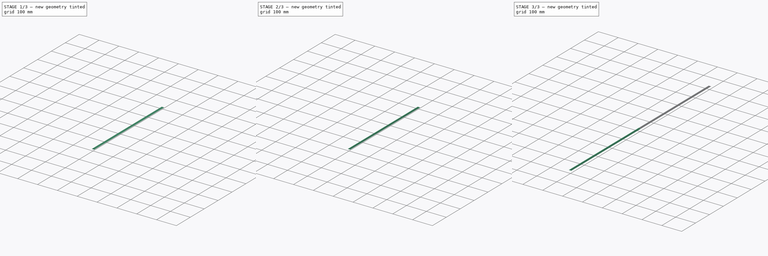
[diagram: build sequence overview — one tinted view per stage of 3, left to right]
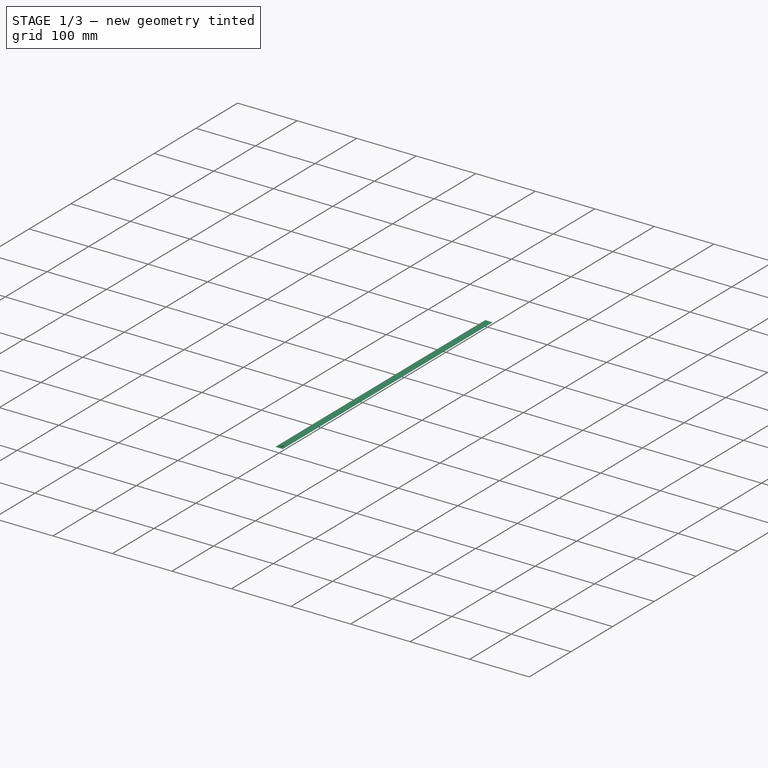
[diagram: stage 1 of 3 — iso view after this stage's code; geometry added in this stage tinted green]
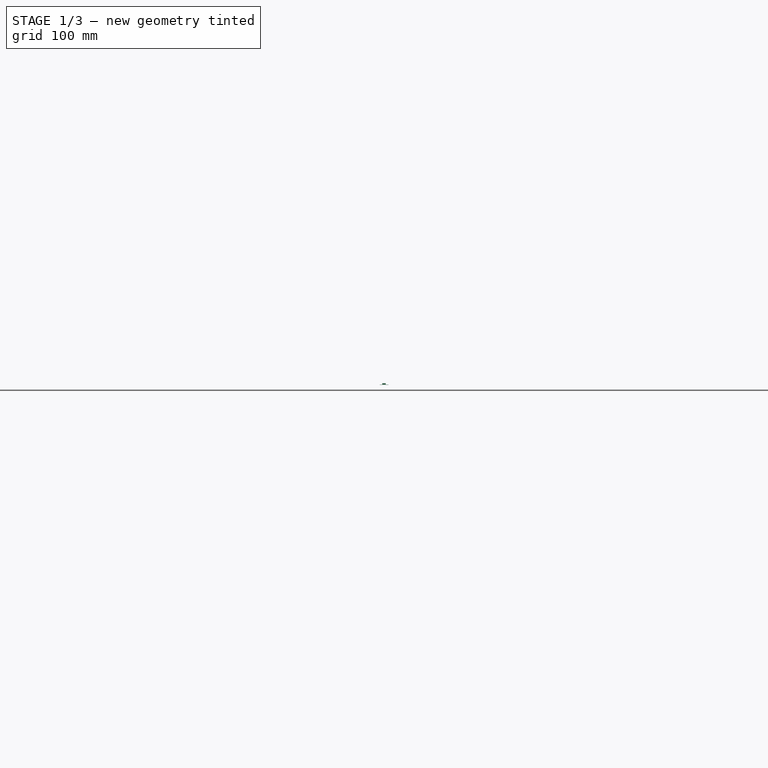
[diagram: stage 1 of 3 — front view after this stage's code; geometry added in this stage tinted green]
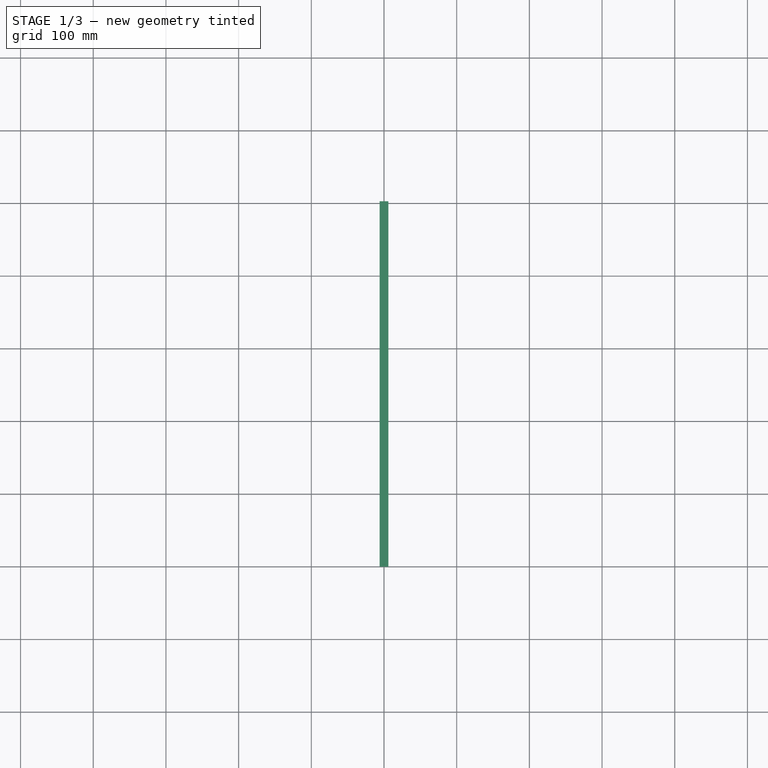
[diagram: stage 1 of 3 — top view after this stage's code; geometry added in this stage tinted green]
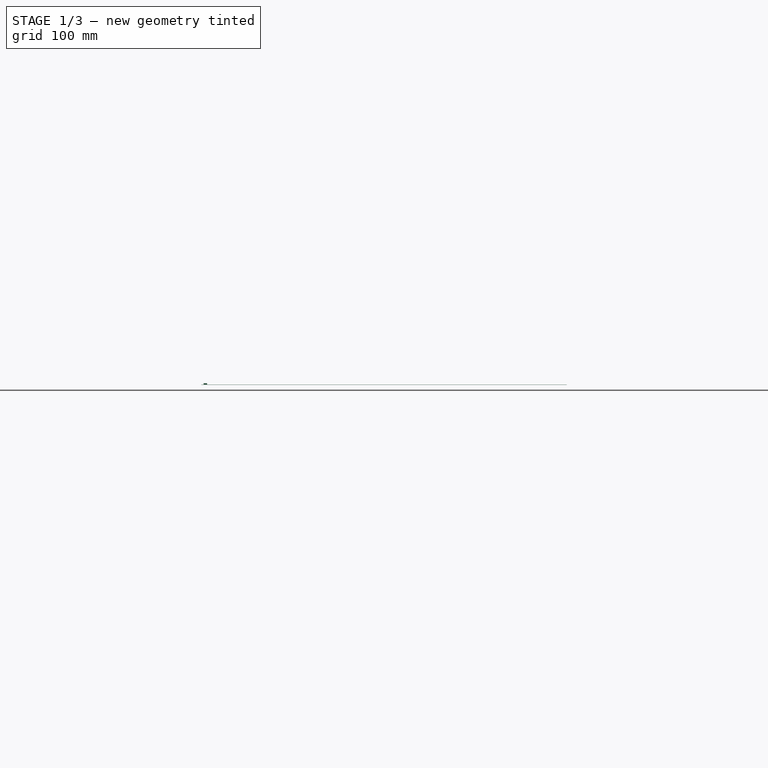
[diagram: stage 1 of 3 — right view after this stage's code; geometry added in this stage tinted green]
FCSTD DOCUMENT  (FreeCAD 0.20R29410 (Git))
Label: SK6812
License: All rights reserved
LicenseURL: http://en.wikipedia.org/wiki/All_rights_reserved
objects: Sketcher::SketchObject×4, PartDesign::Pad×3, PartDesign::LinearPattern×1, PartDesign::Body×1, Part::Mirroring×1, Part::MultiFuse×1
note: 14 computed .brp shape members not serialized (recipe doc carries the construction recipe); baked Part::Feature solids carry a one-line shape summary decoded from their .brp

FEATURE [Sketcher::SketchObject] Sketch  label="skBand"
  FullyConstrained = true
  MapMode = 5
  Placement = pos=(0,0,0) rot=(1,0,0;1.5708rad)
  Support = -> [XZ_Plane]
  sketch-geometry (4):
    g0: LineSegment StartX=-6 StartY=0 StartZ=0 EndX=6 EndY=0 EndZ=0
    g1: LineSegment StartX=6 StartY=0 StartZ=0 EndX=6 EndY=0.3 EndZ=0
    g2: LineSegment StartX=6 StartY=0.3 StartZ=0 EndX=-6 EndY=0.3 EndZ=0
    g3: LineSegment StartX=-6 StartY=0.3 StartZ=0 EndX=-6 EndY=0 EndZ=0
  constraints (11):
    c: Coincident(g0,g1)
    c: Coincident(g1,g2)
    c: Coincident(g2,g3)
    c: Coincident(g3,g0)
    c: Horizontal(g0)
    c: Vertical(g1)
    c: Vertical(g3)
    c: PointOnObject(g0,g-1)
    c: Symmetric(g1,g2,g-2)
    c: Distance(g2) = 12
    c: Distance(g1) = 0.3
FEATURE [PartDesign::Pad] Pad  label="pdBand"
  Direction = (0,-1,2e-16)
  Length = 503
  Length2 = 10
  Placement = pos=(0,0,0) rot=(1,0,0;1.5708rad)
  Profile = -> Sketch
  ReferenceAxis = -> Sketch [N_Axis]
  Reversed = true
  Type = 0
FEATURE [Sketcher::SketchObject] Sketch001  label="skLED"
  AttachmentOffset = pos=(0,0,0.3) rot=(0,0,1;0rad)
  FullyConstrained = true
  MapMode = 5
  Placement = pos=(0,0,0.3) rot=(0,0,1;0rad)
  Support = -> [XY_Plane]
  sketch-geometry (4):
    g0: LineSegment StartX=-2.4 StartY=8.2 StartZ=0 EndX=2.4 EndY=8.2 EndZ=0
    g1: LineSegment StartX=2.4 StartY=8.2 StartZ=0 EndX=2.4 EndY=3.4 EndZ=0
    g2: LineSegment StartX=2.4 StartY=3.4 StartZ=0 EndX=-2.4 EndY=3.4 EndZ=0
    g3: LineSegment StartX=-2.4 StartY=3.4 StartZ=0 EndX=-2.4 EndY=8.2 EndZ=0
  constraints (11):
    c: Coincident(g0,g1)
    c: Coincident(g1,g2)
    c: Coincident(g2,g3)
    c: Coincident(g3,g0)
    c: Horizontal(g0)
    c: Vertical(g1)
    c: Vertical(g3)
    c: Symmetric(g1,g2,g-2)
    c: Equal(g1,g2)
    c: Distance(g1) = 4.8
    c: DistanceY(g-1,g1) = 3.4
FEATURE [PartDesign::Pad] Pad001  label="pdLED"
  BaseFeature = -> Pad
  Direction = (0,0,1)
  Length = 1.6
  Length2 = 10
  Placement = pos=(0,0,0) rot=(1,0,0;1.5708rad)
  Profile = -> Sketch001
  ReferenceAxis = -> Sketch001 [N_Axis]
  Type = 0
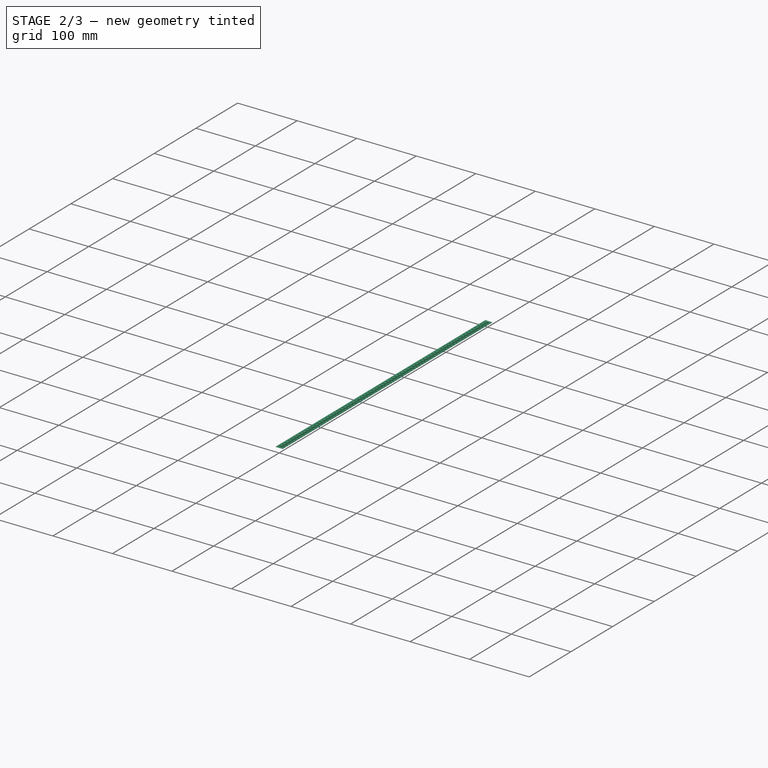
[diagram: stage 2 of 3 — iso view after this stage's code; geometry added in this stage tinted green]
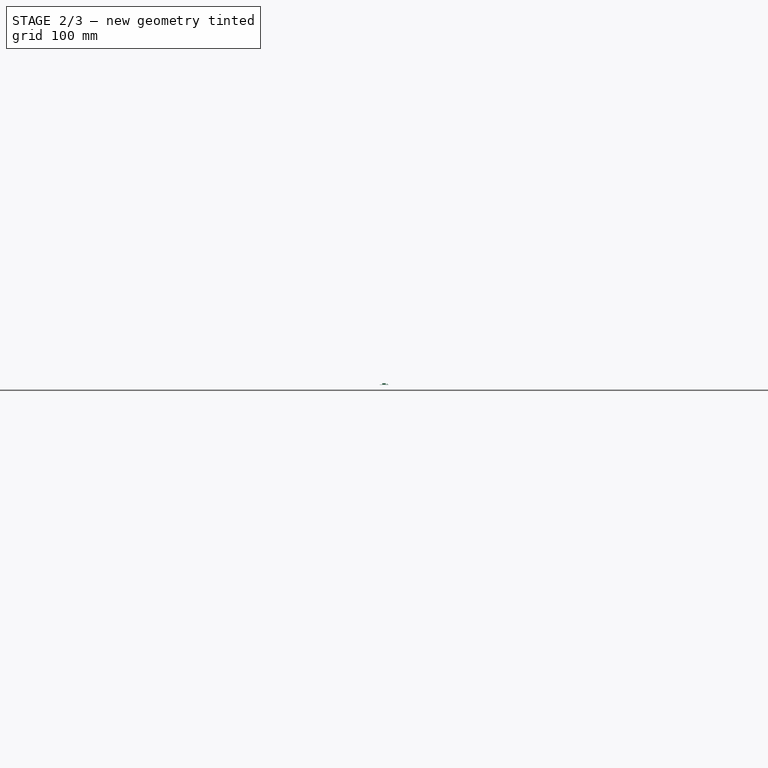
[diagram: stage 2 of 3 — front view after this stage's code; geometry added in this stage tinted green]
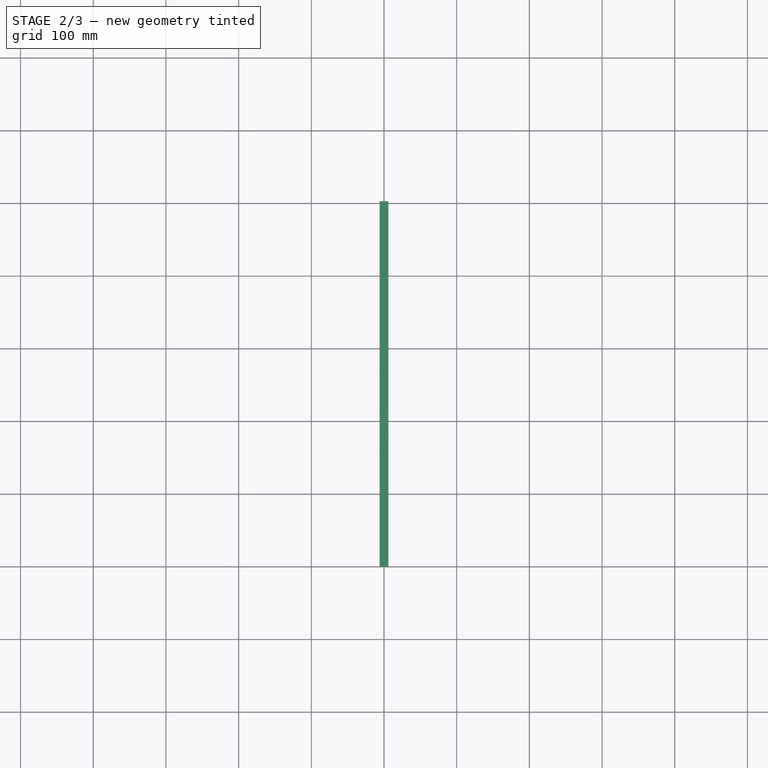
[diagram: stage 2 of 3 — top view after this stage's code; geometry added in this stage tinted green]
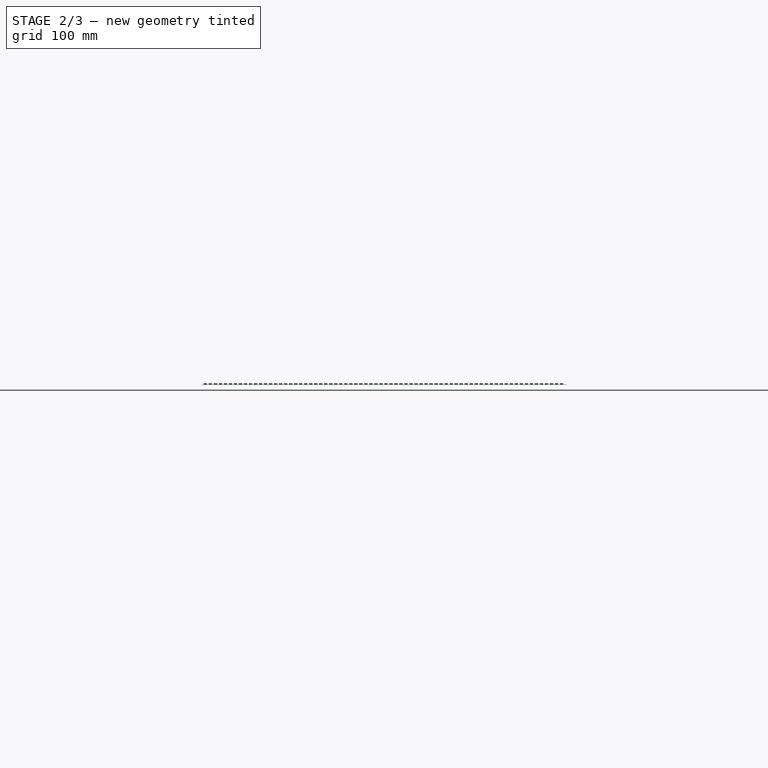
[diagram: stage 2 of 3 — right view after this stage's code; geometry added in this stage tinted green]
FEATURE [Sketcher::SketchObject] Sketch002  label="skResistor"
  AttachmentOffset = pos=(0,0,0.3) rot=(0,0,1;0rad)
  FullyConstrained = false
  MapMode = 5
  Placement = pos=(0,0,0.3) rot=(0,0,1;0rad)
  Support = -> [XY_Plane]
  sketch-geometry (4):
    g0: LineSegment StartX=3.96273 StartY=6.92093 StartZ=0 EndX=4.76273 EndY=6.92093 EndZ=0
    g1: LineSegment StartX=4.76273 StartY=6.92093 StartZ=0 EndX=4.76273 EndY=4.92093 EndZ=0
    g2: LineSegment StartX=4.76273 StartY=4.92093 StartZ=0 EndX=3.96273 EndY=4.92093 EndZ=0
    g3: LineSegment StartX=3.96273 StartY=4.92093 StartZ=0 EndX=3.96273 EndY=6.92093 EndZ=0
  constraints (10):
    c: Coincident(g0,g1)
    c: Coincident(g1,g2)
    c: Coincident(g2,g3)
    c: Coincident(g3,g0)
    c: Horizontal(g0)
    c: Horizontal(g2)
    c: Vertical(g1)
    c: Vertical(g3)
    c: Distance(g0) = 0.8
    c: Distance(g1) = 2
FEATURE [PartDesign::Pad] Pad002  label="pdResistor"
  BaseFeature = -> Pad001
  Direction = (0,0,1)
  Length = 1
  Length2 = 10
  Placement = pos=(0,0,0) rot=(1,0,0;1.5708rad)
  Profile = -> Sketch002
  ReferenceAxis = -> Sketch002 [N_Axis]
  Type = 0
FEATURE [PartDesign::LinearPattern] LinearPattern  label="lpLED+Resistor"
  BaseFeature = -> Pad002
  Direction = -> Y_Axis
  Length = 490
  Occurrences = 72
  Originals = -> [Pad001,Pad002]
  Placement = pos=(0,0,0) rot=(1,0,0;1.5708rad)
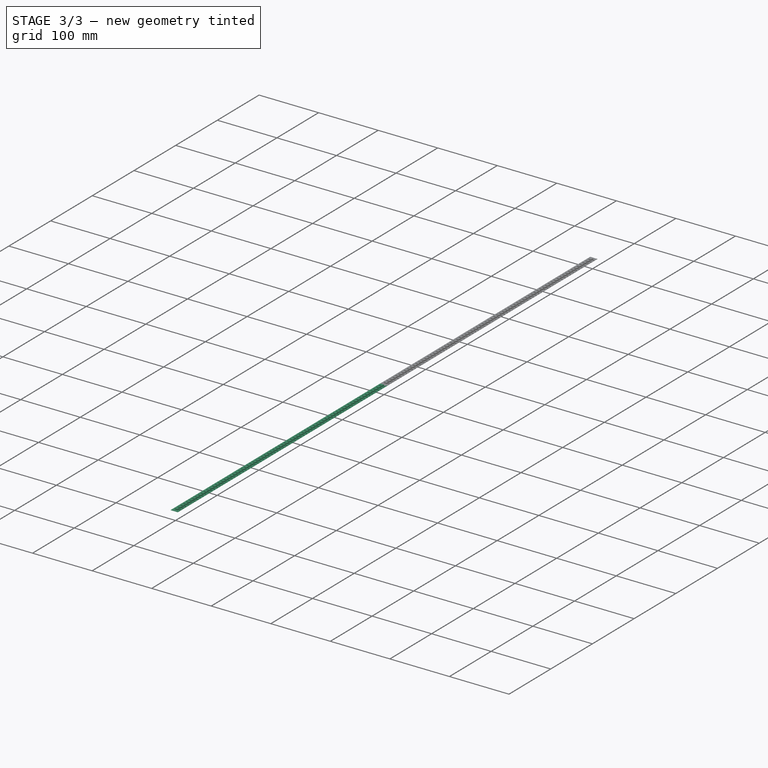
[diagram: stage 3 of 3 — iso view after this stage's code; geometry added in this stage tinted green]
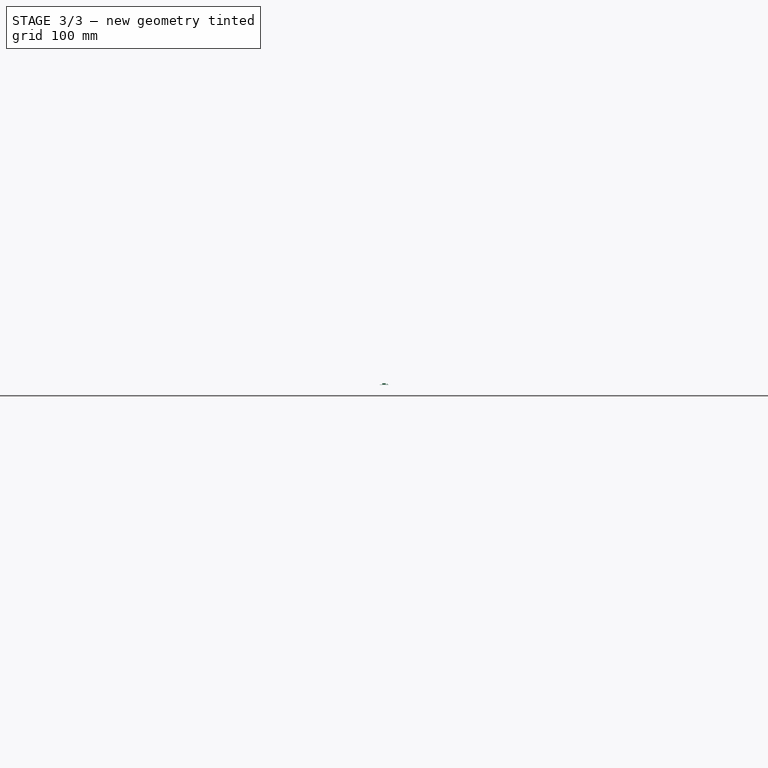
[diagram: stage 3 of 3 — front view after this stage's code; geometry added in this stage tinted green]
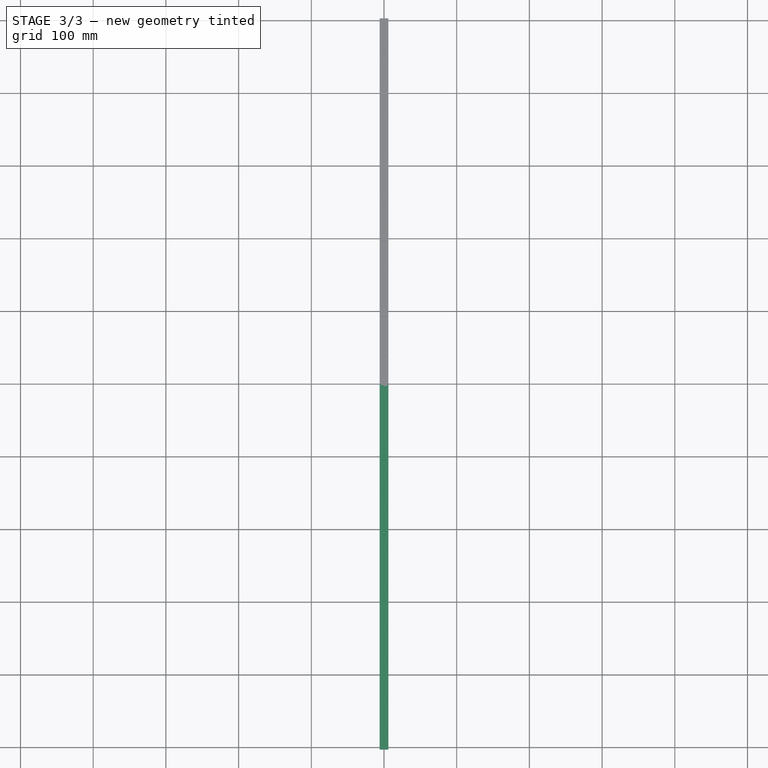
[diagram: stage 3 of 3 — top view after this stage's code; geometry added in this stage tinted green]
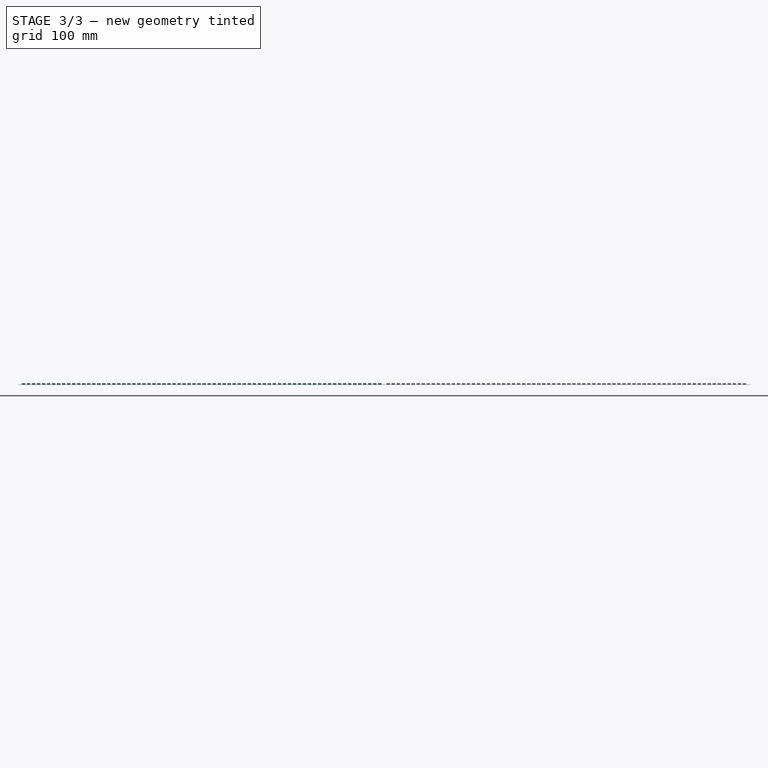
[diagram: stage 3 of 3 — right view after this stage's code; geometry added in this stage tinted green]
FEATURE [Sketcher::SketchObject] Sketch003  label="skBase"
  FullyConstrained = false
  MapMode = 5
  Support = -> [XY_Plane]
  sketch-geometry (4):
    g0: LineSegment StartX=-44.757 StartY=503 StartZ=0 EndX=63.5086 EndY=503 EndZ=0
    g1: LineSegment StartX=63.5086 StartY=503 StartZ=0 EndX=63.5086 EndY=-503 EndZ=0
    g2: LineSegment StartX=63.5086 StartY=-503 StartZ=0 EndX=-44.757 EndY=-503 EndZ=0
    g3: LineSegment StartX=-44.757 StartY=-503 StartZ=0 EndX=-44.757 EndY=503 EndZ=0
  constraints (9):
    c: Coincident(g0,g1)
    c: Coincident(g1,g2)
    c: Coincident(g2,g3)
    c: Coincident(g3,g0)
    c: Horizontal(g0)
    c: Horizontal(g2)
    c: Vertical(g3)
    c: Symmetric(g0,g1,g-1)
    c: Distance(g1) = 1006
FEATURE [PartDesign::Body] Body  label="SK6812-502mm"
  Group = -> [Sketch,Pad,Sketch001,Pad001,Sketch002,Pad002,LinearPattern,Sketch003]
  Origin = -> Origin
  Tip = -> LinearPattern
FEATURE [Part::Mirroring] Part__Mirroring  label="mrWhole"
  Base = (0,5.96046e-08,0.950029)
  Normal = (0,1,-1.19209e-07)
  Source = -> LinearPattern
FEATURE [Part::MultiFuse] Fusion  label="SK6812"
  Refine = true
  Shapes = -> [Body,Part__Mirroring]
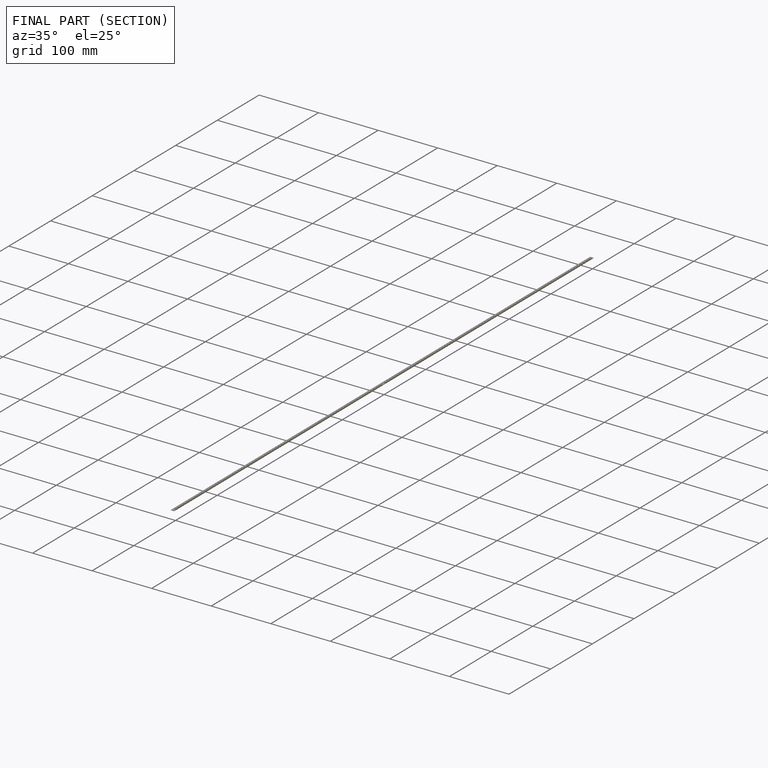
[diagram: finished part — half-section view (interior)]
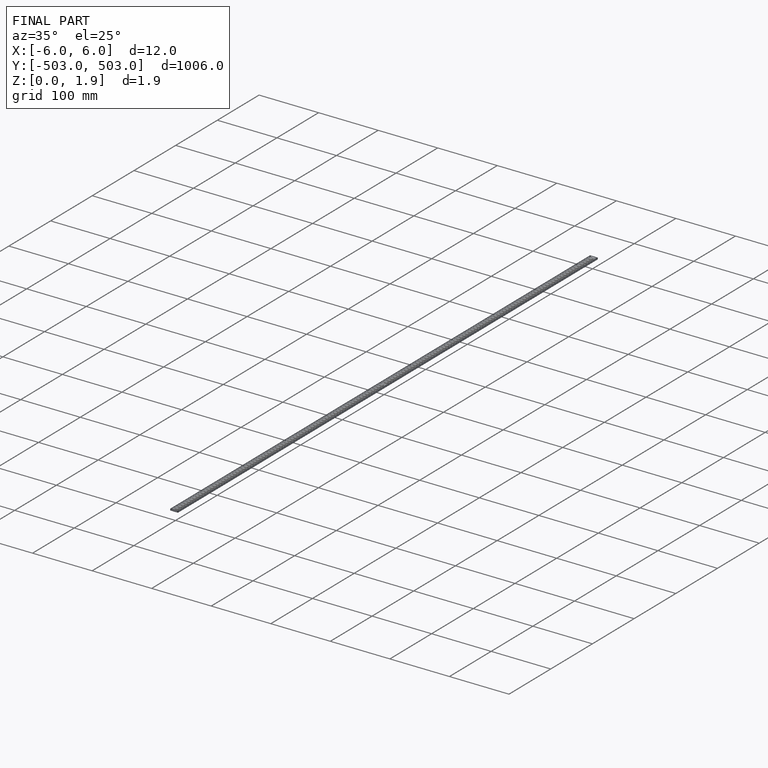
[diagram: finished part — iso view with bounding-box wireframe]
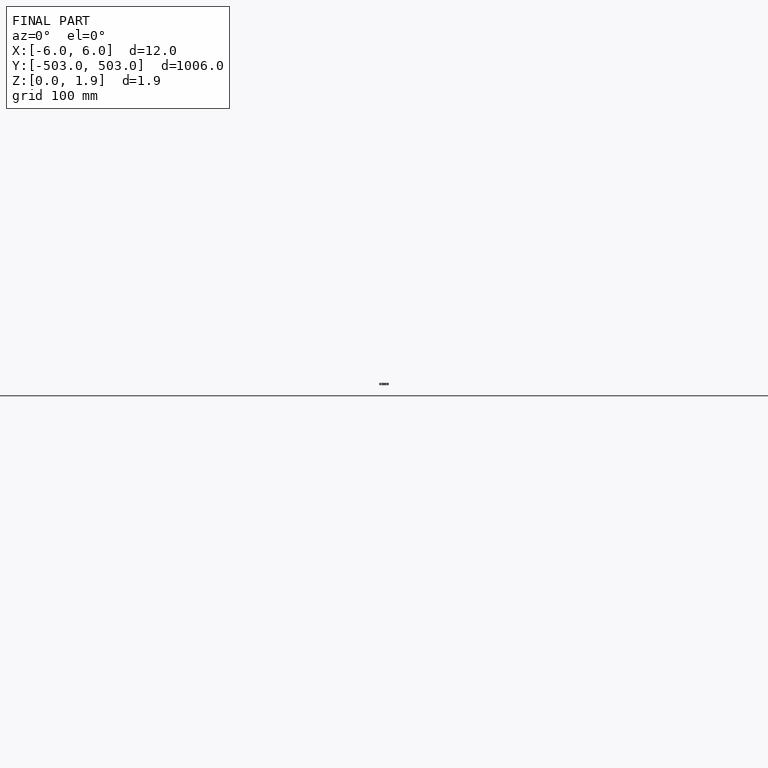
[diagram: finished part — front view with bounding-box wireframe]
